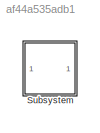
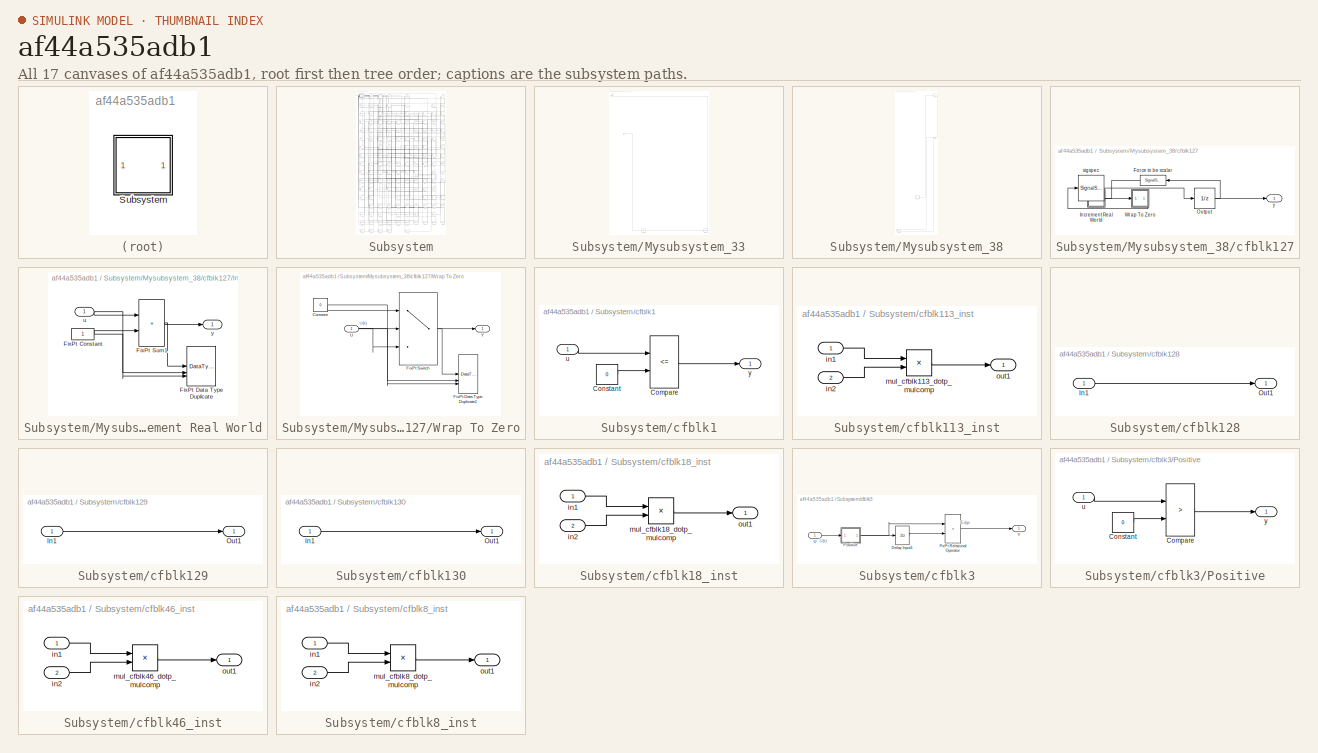
[diagram: thumbnail index - all 17 canvases of the model, root first then tree order]
MODEL slx_af44a535adb1
KIND model
CONFIG AbsTol = auto
CONFIG EnableMultiTasking = off
CONFIG FixedStep = auto
CONFIG MaxStep = auto
CONFIG MinStep = auto
CONFIG RelTol = 1e-3
CONFIG SampleTimeConstraint = Unconstrained
CONFIG SolverName = VariableStepAuto
CONFIG StartTime = 0.0
CONFIG StopTime = 10.0
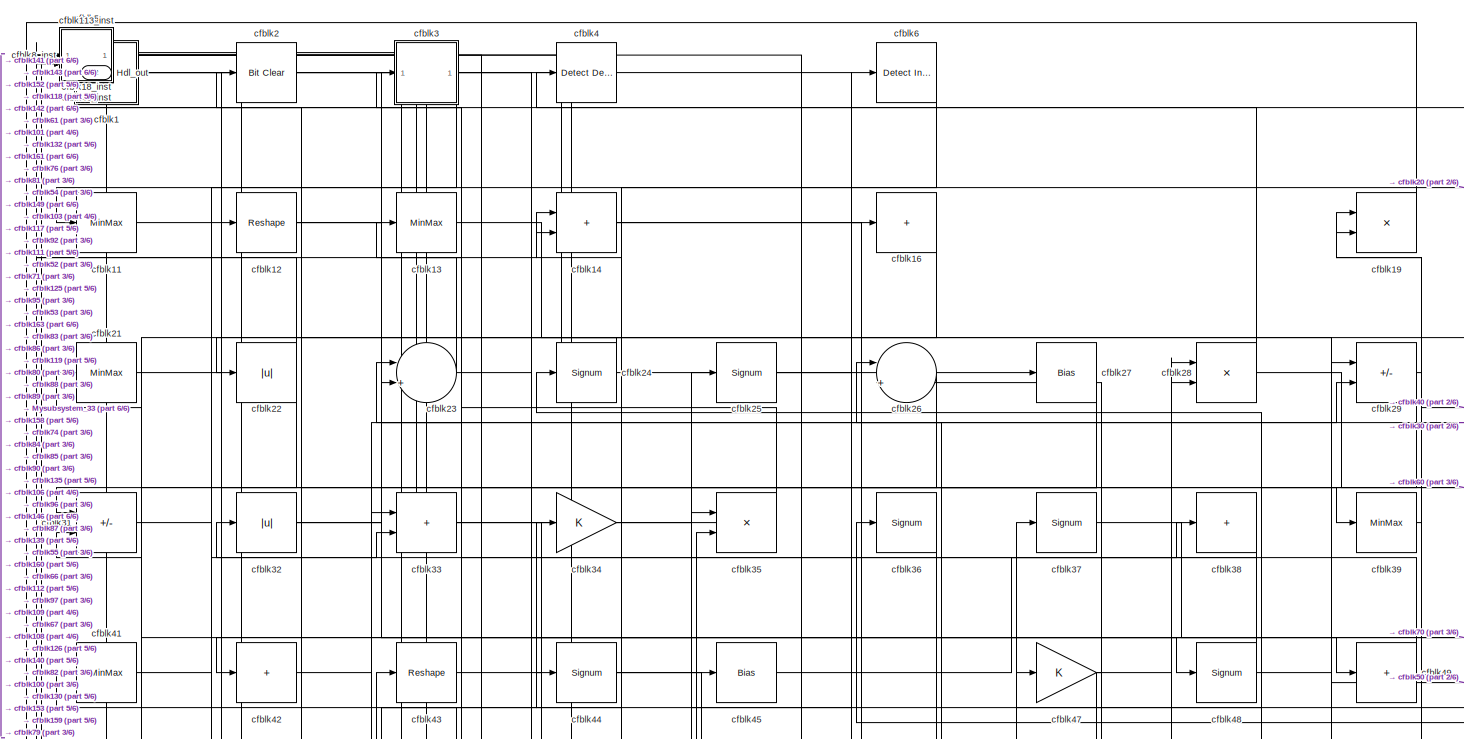
[diagram: Subsystem - part 1/6, full width, top band]
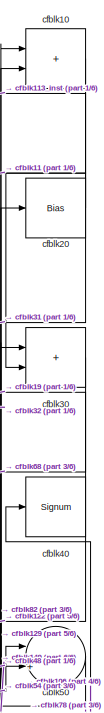
[diagram: Subsystem - part 2/6, top right region]
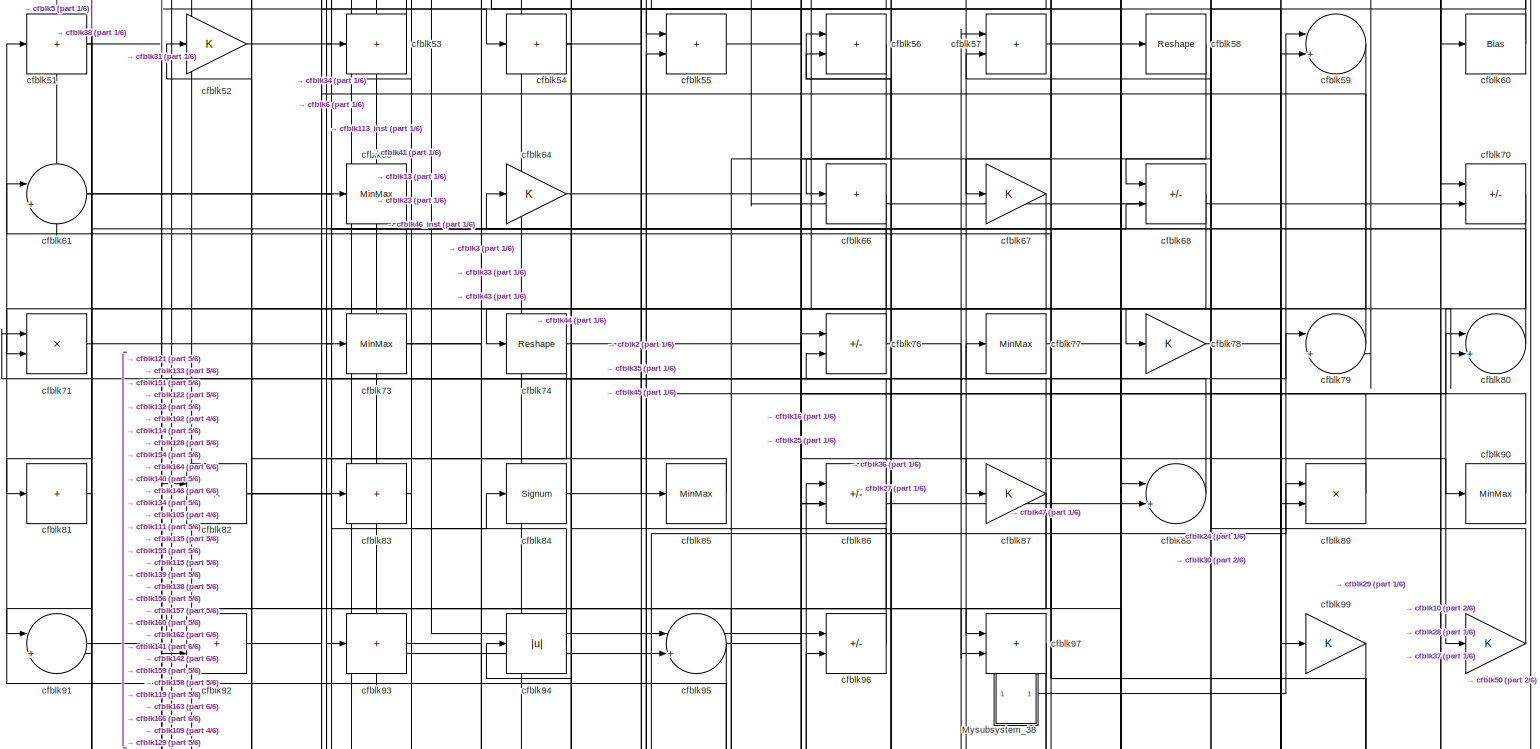
[diagram: Subsystem - part 3/6, full width, middle band]
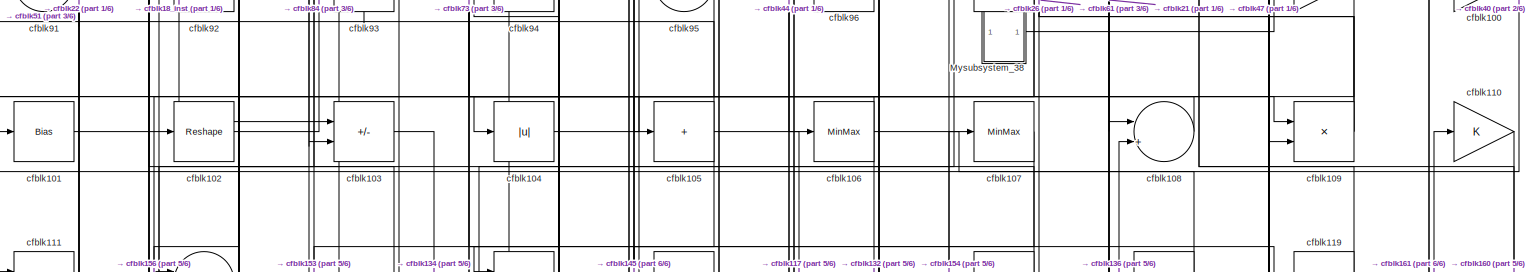
[diagram: Subsystem - part 4/6, full width, middle band]
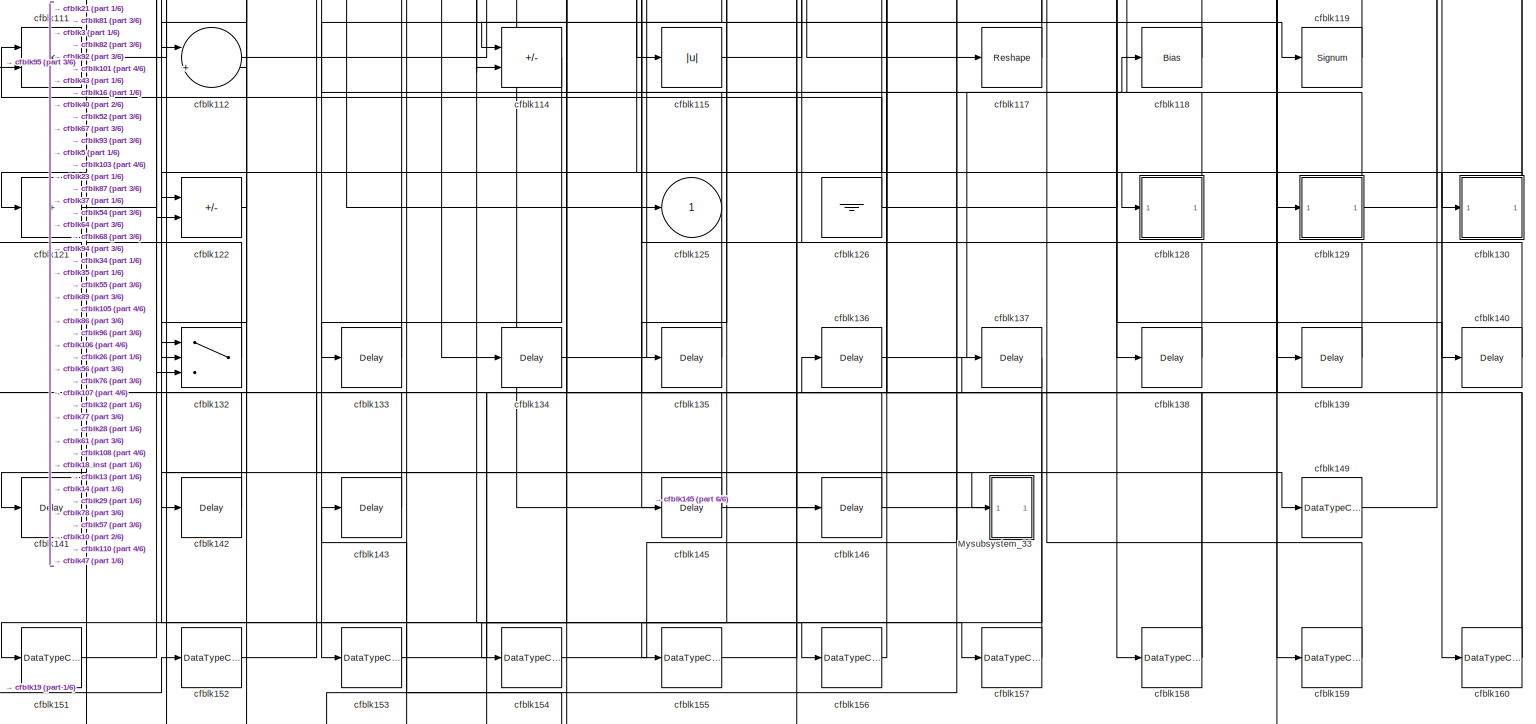
[diagram: Subsystem - part 5/6, full width, bottom band]
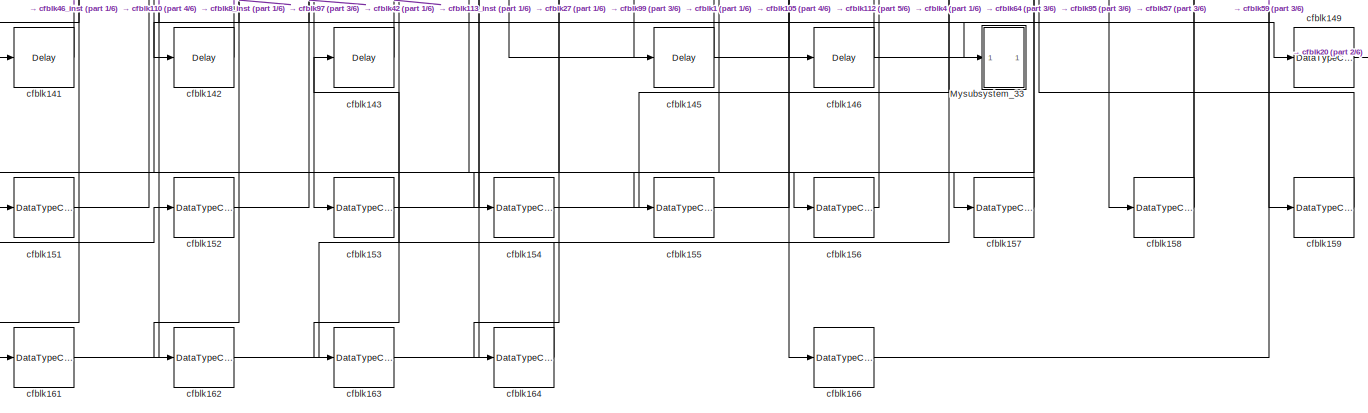
[diagram: Subsystem - part 6/6, full width, bottom band]
BLOCK [SubSystem] Subsystem
BLOCK [Outport] Subsystem/Hdl_out
  OutDataTypeStr = uint8
  Port = 2
  SampleTime = 1
BLOCK [SubSystem] Subsystem/Mysubsystem_33
BLOCK [Inport] Subsystem/Mysubsystem_33/In1
  OutDataTypeStr = uint8
  PortDimensions = 1
  SampleTime = 1
BLOCK [Outport] Subsystem/Mysubsystem_33/Out1
  SampleTime = 1
BLOCK [Delay] Subsystem/Mysubsystem_33/cfblk144
  InputPortMap = u0
  SampleTime = 1
BLOCK [DataTypeConversion] Subsystem/Mysubsystem_33/cfblk150
  OutDataTypeStr = uint8
  RndMeth = Floor
  SaturateOnIntegerOverflow = off
BLOCK [SubSystem] Subsystem/Mysubsystem_38
BLOCK [Outport] Subsystem/Mysubsystem_38/Out1
  SampleTime = 1
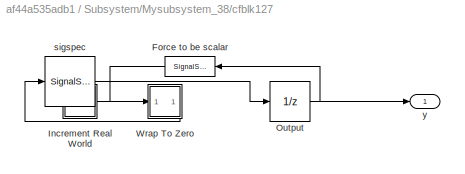
BLOCK [SubSystem] Subsystem/Mysubsystem_38/cfblk127
BLOCK [SignalSpecification] Subsystem/Mysubsystem_38/cfblk127/Force to be scalar
  Dimensions = 1
  DisableCoverage = on
BLOCK [SubSystem] Subsystem/Mysubsystem_38/cfblk127/Increment Real World
BLOCK [Constant] Subsystem/Mysubsystem_38/cfblk127/Increment Real World/FixPt Constant
  DisableCoverage = on
  OutDataTypeStr = Inherit: Inherit via back propagation
  SampleTime = -1
BLOCK [DataTypeDuplicate] Subsystem/Mysubsystem_38/cfblk127/Increment Real World/FixPt Data Type Duplicate
  DisableCoverage = on
  NumInputPorts = 3
BLOCK [Sum] Subsystem/Mysubsystem_38/cfblk127/Increment Real World/FixPt Sum1
  IconShape = rectangular
  InputSameDT = on
  LockScale = on
  OutDataTypeStr = Inherit: Inherit via back propagation
BLOCK [Inport] Subsystem/Mysubsystem_38/cfblk127/Increment Real World/u
  OutDataTypeStr = uint16
  SampleTime = 1
BLOCK [Outport] Subsystem/Mysubsystem_38/cfblk127/Increment Real World/y
  SampleTime = 1
BLOCK [UnitDelay] Subsystem/Mysubsystem_38/cfblk127/Output
  HasFrameUpgradeWarning = on
  InitialCondition = 0.0
  SampleTime = tsamp
BLOCK [SubSystem] Subsystem/Mysubsystem_38/cfblk127/Wrap To Zero
BLOCK [Constant] Subsystem/Mysubsystem_38/cfblk127/Wrap To Zero/Constant
  DisableCoverage = on
  OutDataTypeStr = Inherit: Inherit via back propagation
  SampleTime = -1
  Value = 0
BLOCK [DataTypeDuplicate] Subsystem/Mysubsystem_38/cfblk127/Wrap To Zero/FixPt Data Type Duplicate1
  DisableCoverage = on
  NumInputPorts = 3
BLOCK [Switch] Subsystem/Mysubsystem_38/cfblk127/Wrap To Zero/FixPt Switch
  Criteria = u2 > Threshold
  InputSameDT = off
  OutDataTypeStr = Inherit: Inherit via back propagation
  SaturateOnIntegerOverflow = off
  Threshold = Threshold
  ZeroCross = off
BLOCK [Inport] Subsystem/Mysubsystem_38/cfblk127/Wrap To Zero/U
  OutDataTypeStr = uint16
  SampleTime = 1
BLOCK [Outport] Subsystem/Mysubsystem_38/cfblk127/Wrap To Zero/Y
  SampleTime = 1
BLOCK [SignalSpecification] Subsystem/Mysubsystem_38/cfblk127/sigspec
  Dimensions = 1
  OutDataTypeStr = uint16
BLOCK [Outport] Subsystem/Mysubsystem_38/cfblk127/y
  SampleTime = 1
BLOCK [DataTypeConversion] Subsystem/Mysubsystem_38/cfblk165
  OutDataTypeStr = uint8
  RndMeth = Floor
  SaturateOnIntegerOverflow = off
BLOCK [Abs] Subsystem/Mysubsystem_38/cfblk9
  SaturateOnIntegerOverflow = off
BLOCK [SubSystem] Subsystem/cfblk1
BLOCK [RelationalOperator] Subsystem/cfblk1/Compare
  Operator = <=
  OutDataTypeStr = fixdt(0, 8)
BLOCK [Constant] Subsystem/cfblk1/Constant
  DisableCoverage = on
  OutDataTypeStr = Inherit: Inherit via back propagation
  PreserveConstantTs = on
  SampleTime = -1
  Value = 0
BLOCK [Inport] Subsystem/cfblk1/u
  OutDataTypeStr = uint8
  SampleTime = 1
BLOCK [Outport] Subsystem/cfblk1/y
  SampleTime = 1
BLOCK [Sum] Subsystem/cfblk10
  IconShape = rectangular
  OutDataTypeStr = uint8
BLOCK [Gain] Subsystem/cfblk100
  OutDataTypeStr = uint8
BLOCK [Bias] Subsystem/cfblk101
  Bias = 0.0
  SaturateOnIntegerOverflow = off
BLOCK [Reshape] Subsystem/cfblk102
BLOCK [Sum] Subsystem/cfblk103
  IconShape = rectangular
  Inputs = +-
  OutDataTypeStr = uint8
BLOCK [Abs] Subsystem/cfblk104
  OutDataTypeStr = uint8
  SaturateOnIntegerOverflow = off
BLOCK [Sum] Subsystem/cfblk105
  IconShape = rectangular
  Inputs = +
  OutDataTypeStr = uint8
BLOCK [MinMax] Subsystem/cfblk106
  OutDataTypeStr = uint8
BLOCK [MinMax] Subsystem/cfblk107
  OutDataTypeStr = uint8
BLOCK [Sum] Subsystem/cfblk108
  Inputs = |++
  OutDataTypeStr = uint8
BLOCK [Product] Subsystem/cfblk109
  Inputs = */
  OutDataTypeStr = uint8
  RndMeth = Zero
  SaturateOnIntegerOverflow = on
BLOCK [MinMax] Subsystem/cfblk11
  OutDataTypeStr = uint8
BLOCK [Gain] Subsystem/cfblk110
  OutDataTypeStr = uint8
BLOCK [Product] Subsystem/cfblk111
  Inputs = */
  OutDataTypeStr = uint8
  RndMeth = Zero
  SaturateOnIntegerOverflow = on
BLOCK [Sum] Subsystem/cfblk112
  Inputs = |++
  OutDataTypeStr = uint8
BLOCK [SubSystem] Subsystem/cfblk113_inst
BLOCK [Inport] Subsystem/cfblk113_inst/in1
  OutDataTypeStr = uint8
  SampleTime = 1
BLOCK [Inport] Subsystem/cfblk113_inst/in2
  OutDataTypeStr = uint8
  Port = 2
  SampleTime = 1
BLOCK [Product] Subsystem/cfblk113_inst/mul_cfblk113_dotp_mulcomp
  Inputs = **
  OutDataTypeStr = uint8
  SampleTime = 1
BLOCK [Outport] Subsystem/cfblk113_inst/out1
  OutDataTypeStr = uint8
  SampleTime = 1
BLOCK [Sum] Subsystem/cfblk114
  IconShape = rectangular
  Inputs = +-
  OutDataTypeStr = uint8
BLOCK [Abs] Subsystem/cfblk115
  OutDataTypeStr = uint8
  SaturateOnIntegerOverflow = off
BLOCK [Reshape] Subsystem/cfblk117
BLOCK [Bias] Subsystem/cfblk118
  Bias = 0.0
  SaturateOnIntegerOverflow = off
BLOCK [Signum] Subsystem/cfblk119
BLOCK [Reshape] Subsystem/cfblk12
BLOCK [Sum] Subsystem/cfblk121
  IconShape = rectangular
  Inputs = +
  OutDataTypeStr = uint8
BLOCK [Sum] Subsystem/cfblk122
  IconShape = rectangular
  Inputs = +-
  OutDataTypeStr = uint8
BLOCK [Outport] Subsystem/cfblk125
  OutDataTypeStr = uint8
  SampleTime = 1
  VectorParamsAs1DForOutWhenUnconnected = off
BLOCK [Ground] Subsystem/cfblk126
BLOCK [SubSystem] Subsystem/cfblk128
BLOCK [Inport] Subsystem/cfblk128/In1
  OutDataTypeStr = uint8
  PortDimensions = 1
  SampleTime = 1
BLOCK [Outport] Subsystem/cfblk128/Out1
  SampleTime = 1
BLOCK [SubSystem] Subsystem/cfblk129
BLOCK [Inport] Subsystem/cfblk129/In1
  OutDataTypeStr = uint8
  PortDimensions = 1
  SampleTime = 1
BLOCK [Outport] Subsystem/cfblk129/Out1
  SampleTime = 1
BLOCK [MinMax] Subsystem/cfblk13
  OutDataTypeStr = uint8
BLOCK [SubSystem] Subsystem/cfblk130
BLOCK [Inport] Subsystem/cfblk130/In1
  OutDataTypeStr = uint8
  PortDimensions = 1
  SampleTime = 1
BLOCK [Outport] Subsystem/cfblk130/Out1
  SampleTime = 1
BLOCK [Switch] Subsystem/cfblk132
  InputSameDT = off
  OutDataTypeStr = uint8
  SaturateOnIntegerOverflow = off
BLOCK [Delay] Subsystem/cfblk133
  InputPortMap = u0
  SampleTime = 1
BLOCK [Delay] Subsystem/cfblk134
  InputPortMap = u0
  SampleTime = 1
BLOCK [Delay] Subsystem/cfblk135
  InputPortMap = u0
  SampleTime = 1
BLOCK [Delay] Subsystem/cfblk136
  InputPortMap = u0
  SampleTime = 1
BLOCK [Delay] Subsystem/cfblk137
  InputPortMap = u0
  SampleTime = 1
BLOCK [Delay] Subsystem/cfblk138
  InputPortMap = u0
  SampleTime = 1
BLOCK [Delay] Subsystem/cfblk139
  InputPortMap = u0
  SampleTime = 1
BLOCK [Sum] Subsystem/cfblk14
  IconShape = rectangular
  OutDataTypeStr = uint8
BLOCK [Delay] Subsystem/cfblk140
  InputPortMap = u0
  SampleTime = 1
BLOCK [Delay] Subsystem/cfblk141
  InputPortMap = u0
  SampleTime = 1
BLOCK [Delay] Subsystem/cfblk142
  InputPortMap = u0
  SampleTime = 1
BLOCK [Delay] Subsystem/cfblk143
  InputPortMap = u0
  SampleTime = 1
BLOCK [Delay] Subsystem/cfblk145
  InputPortMap = u0
  SampleTime = 1
BLOCK [Delay] Subsystem/cfblk146
  InputPortMap = u0
  SampleTime = 1
BLOCK [DataTypeConversion] Subsystem/cfblk149
  OutDataTypeStr = uint8
  RndMeth = Floor
  SaturateOnIntegerOverflow = off
BLOCK [DataTypeConversion] Subsystem/cfblk151
  OutDataTypeStr = uint8
  RndMeth = Floor
  SaturateOnIntegerOverflow = off
BLOCK [DataTypeConversion] Subsystem/cfblk152
  OutDataTypeStr = uint8
  RndMeth = Floor
  SaturateOnIntegerOverflow = off
BLOCK [DataTypeConversion] Subsystem/cfblk153
  OutDataTypeStr = uint8
  RndMeth = Floor
  SaturateOnIntegerOverflow = off
BLOCK [DataTypeConversion] Subsystem/cfblk154
  OutDataTypeStr = uint8
  RndMeth = Floor
  SaturateOnIntegerOverflow = off
BLOCK [DataTypeConversion] Subsystem/cfblk155
  OutDataTypeStr = uint8
  RndMeth = Floor
  SaturateOnIntegerOverflow = off
BLOCK [DataTypeConversion] Subsystem/cfblk156
  OutDataTypeStr = uint8
  RndMeth = Floor
  SaturateOnIntegerOverflow = off
BLOCK [DataTypeConversion] Subsystem/cfblk157
  OutDataTypeStr = uint8
  RndMeth = Floor
  SaturateOnIntegerOverflow = off
BLOCK [DataTypeConversion] Subsystem/cfblk158
  OutDataTypeStr = uint8
  RndMeth = Floor
  SaturateOnIntegerOverflow = off
BLOCK [DataTypeConversion] Subsystem/cfblk159
  OutDataTypeStr = uint8
  RndMeth = Floor
  SaturateOnIntegerOverflow = off
BLOCK [Sum] Subsystem/cfblk16
  IconShape = rectangular
  Inputs = +
  OutDataTypeStr = uint8
BLOCK [DataTypeConversion] Subsystem/cfblk160
  OutDataTypeStr = uint8
  RndMeth = Floor
  SaturateOnIntegerOverflow = off
BLOCK [DataTypeConversion] Subsystem/cfblk161
  OutDataTypeStr = uint8
  RndMeth = Floor
  SaturateOnIntegerOverflow = off
BLOCK [DataTypeConversion] Subsystem/cfblk162
  OutDataTypeStr = uint8
  RndMeth = Floor
  SaturateOnIntegerOverflow = off
BLOCK [DataTypeConversion] Subsystem/cfblk163
  OutDataTypeStr = uint8
  RndMeth = Floor
  SaturateOnIntegerOverflow = off
BLOCK [DataTypeConversion] Subsystem/cfblk164
  OutDataTypeStr = uint8
  RndMeth = Floor
  SaturateOnIntegerOverflow = off
BLOCK [DataTypeConversion] Subsystem/cfblk166
  OutDataTypeStr = uint8
  RndMeth = Floor
  SaturateOnIntegerOverflow = off
BLOCK [SubSystem] Subsystem/cfblk18_inst
BLOCK [Inport] Subsystem/cfblk18_inst/in1
  OutDataTypeStr = uint8
  SampleTime = 1
BLOCK [Inport] Subsystem/cfblk18_inst/in2
  OutDataTypeStr = uint8
  Port = 2
  SampleTime = 1
BLOCK [Product] Subsystem/cfblk18_inst/mul_cfblk18_dotp_mulcomp
  Inputs = **
  OutDataTypeStr = uint8
  SampleTime = 1
BLOCK [Outport] Subsystem/cfblk18_inst/out1
  OutDataTypeStr = uint8
  SampleTime = 1
BLOCK [Product] Subsystem/cfblk19
  Inputs = */
  OutDataTypeStr = uint8
  RndMeth = Zero
  SaturateOnIntegerOverflow = on
BLOCK [Reference] Subsystem/cfblk2  REF=simulink/Logic and Bit
Operations/Bit Clear
  LibrarySourceBlock = hdlsllib/Logic and Bit\nOperations/Bit Clear
  SourceBlock = simulink/Logic and Bit\nOperations/Bit Clear
  SourceType = Bit Clear
BLOCK [Bias] Subsystem/cfblk20
  Bias = 0.0
  SaturateOnIntegerOverflow = off
BLOCK [MinMax] Subsystem/cfblk21
  OutDataTypeStr = uint8
BLOCK [Abs] Subsystem/cfblk22
  OutDataTypeStr = uint8
  SaturateOnIntegerOverflow = off
BLOCK [Sum] Subsystem/cfblk23
  Inputs = |++
  OutDataTypeStr = uint8
BLOCK [Signum] Subsystem/cfblk24
BLOCK [Signum] Subsystem/cfblk25
BLOCK [Sum] Subsystem/cfblk26
  Inputs = |++
  OutDataTypeStr = uint8
BLOCK [Bias] Subsystem/cfblk27
  Bias = 0.0
  SaturateOnIntegerOverflow = off
BLOCK [Product] Subsystem/cfblk28
  Inputs = */
  OutDataTypeStr = uint8
  RndMeth = Zero
  SaturateOnIntegerOverflow = on
BLOCK [Sum] Subsystem/cfblk29
  IconShape = rectangular
  Inputs = +-
  OutDataTypeStr = uint8
BLOCK [SubSystem] Subsystem/cfblk3
BLOCK [UnitDelay] Subsystem/cfblk3/Delay Input1
  Description = Store in Global RAM
  DisableCoverage = on
  HasFrameUpgradeWarning = on
  InitialCondition = vinit
  SampleTime = -1
BLOCK [RelationalOperator] Subsystem/cfblk3/FixPt Relational Operator
  InputSameDT = off
  Operator = >
  OutDataTypeStr = fixdt(0, 8)
  ZeroCross = off
BLOCK [SubSystem] Subsystem/cfblk3/Positive
BLOCK [RelationalOperator] Subsystem/cfblk3/Positive/Compare
  Operator = >
  OutDataTypeStr = boolean
  ZeroCross = off
BLOCK [Constant] Subsystem/cfblk3/Positive/Constant
  DisableCoverage = on
  OutDataTypeStr = Inherit: Inherit via back propagation
  PreserveConstantTs = on
  SampleTime = -1
  Value = 0
BLOCK [Inport] Subsystem/cfblk3/Positive/u
  OutDataTypeStr = uint8
  SampleTime = 1
BLOCK [Outport] Subsystem/cfblk3/Positive/y
  SampleTime = 1
BLOCK [Inport] Subsystem/cfblk3/U
  OutDataTypeStr = uint8
  SampleTime = 1
BLOCK [Outport] Subsystem/cfblk3/Y
  SampleTime = 1
BLOCK [Sum] Subsystem/cfblk30
  IconShape = rectangular
  OutDataTypeStr = uint8
BLOCK [Sum] Subsystem/cfblk31
  IconShape = rectangular
  Inputs = +-
  OutDataTypeStr = uint8
BLOCK [Abs] Subsystem/cfblk32
  OutDataTypeStr = uint8
  SaturateOnIntegerOverflow = off
BLOCK [Sum] Subsystem/cfblk33
  IconShape = rectangular
  OutDataTypeStr = uint8
BLOCK [Gain] Subsystem/cfblk34
  OutDataTypeStr = uint8
BLOCK [Product] Subsystem/cfblk35
  Inputs = */
  OutDataTypeStr = uint8
  RndMeth = Zero
  SaturateOnIntegerOverflow = on
BLOCK [Signum] Subsystem/cfblk36
BLOCK [Signum] Subsystem/cfblk37
BLOCK [Sum] Subsystem/cfblk38
  IconShape = rectangular
  Inputs = +
  OutDataTypeStr = uint8
BLOCK [MinMax] Subsystem/cfblk39
  OutDataTypeStr = uint8
BLOCK [Reference] Subsystem/cfblk4  REF=simulink/Logic and Bit
Operations/Detect
Decrease
  LibrarySourceBlock = hdlsllib/Logic and Bit\nOperations/Detect\nDecrease
  SourceBlock = simulink/Logic and Bit\nOperations/Detect\nDecrease
  SourceType = Detect Decrease
BLOCK [Signum] Subsystem/cfblk40
BLOCK [MinMax] Subsystem/cfblk41
  OutDataTypeStr = uint8
BLOCK [Sum] Subsystem/cfblk42
  IconShape = rectangular
  Inputs = +
  OutDataTypeStr = uint8
BLOCK [Reshape] Subsystem/cfblk43
BLOCK [Signum] Subsystem/cfblk44
BLOCK [Bias] Subsystem/cfblk45
  Bias = 0.0
  SaturateOnIntegerOverflow = off
BLOCK [SubSystem] Subsystem/cfblk46_inst
BLOCK [Inport] Subsystem/cfblk46_inst/in1
  OutDataTypeStr = uint8
  SampleTime = 1
BLOCK [Inport] Subsystem/cfblk46_inst/in2
  OutDataTypeStr = uint8
  Port = 2
  SampleTime = 1
BLOCK [Product] Subsystem/cfblk46_inst/mul_cfblk46_dotp_mulcomp
  Inputs = **
  OutDataTypeStr = uint8
  SampleTime = 1
BLOCK [Outport] Subsystem/cfblk46_inst/out1
  OutDataTypeStr = uint8
  SampleTime = 1
BLOCK [Gain] Subsystem/cfblk47
  OutDataTypeStr = uint8
BLOCK [Signum] Subsystem/cfblk48
BLOCK [Sum] Subsystem/cfblk49
  IconShape = rectangular
  Inputs = +
  OutDataTypeStr = uint8
BLOCK [Constant] Subsystem/cfblk5
  OutDataTypeStr = uint8
  SampleTime = 1
  Value = 0
BLOCK [Sum] Subsystem/cfblk50
  Inputs = |++
  OutDataTypeStr = uint8
BLOCK [Sum] Subsystem/cfblk51
  IconShape = rectangular
  Inputs = +
  OutDataTypeStr = uint8
BLOCK [Gain] Subsystem/cfblk52
  OutDataTypeStr = uint8
BLOCK [Sum] Subsystem/cfblk53
  IconShape = rectangular
  Inputs = +
  OutDataTypeStr = uint8
BLOCK [Sum] Subsystem/cfblk54
  IconShape = rectangular
  Inputs = +
  OutDataTypeStr = uint8
BLOCK [Sum] Subsystem/cfblk55
  IconShape = rectangular
  OutDataTypeStr = uint8
BLOCK [Sum] Subsystem/cfblk56
  IconShape = rectangular
  OutDataTypeStr = uint8
BLOCK [Sum] Subsystem/cfblk57
  IconShape = rectangular
  OutDataTypeStr = uint8
BLOCK [Reshape] Subsystem/cfblk58
BLOCK [Sum] Subsystem/cfblk59
  Inputs = |++
  OutDataTypeStr = uint8
BLOCK [Reference] Subsystem/cfblk6  REF=simulink/Logic and Bit
Operations/Detect
Increase
  LibrarySourceBlock = hdlsllib/Logic and Bit\nOperations/Detect\nIncrease
  SourceBlock = simulink/Logic and Bit\nOperations/Detect\nIncrease
  SourceType = Detect Increase
BLOCK [Bias] Subsystem/cfblk60
  Bias = 0.0
  SaturateOnIntegerOverflow = off
BLOCK [Sum] Subsystem/cfblk61
  Inputs = |++
  OutDataTypeStr = uint8
BLOCK [MinMax] Subsystem/cfblk63
  OutDataTypeStr = uint8
BLOCK [Gain] Subsystem/cfblk64
  OutDataTypeStr = uint8
BLOCK [Sum] Subsystem/cfblk66
  IconShape = rectangular
  Inputs = +
  OutDataTypeStr = uint8
BLOCK [Gain] Subsystem/cfblk67
  OutDataTypeStr = uint8
BLOCK [Sum] Subsystem/cfblk68
  IconShape = rectangular
  Inputs = +-
  OutDataTypeStr = uint8
BLOCK [Sum] Subsystem/cfblk70
  IconShape = rectangular
  Inputs = +-
  OutDataTypeStr = uint8
BLOCK [Product] Subsystem/cfblk71
  Inputs = */
  OutDataTypeStr = uint8
  RndMeth = Zero
  SaturateOnIntegerOverflow = on
BLOCK [MinMax] Subsystem/cfblk73
  OutDataTypeStr = uint8
BLOCK [Reshape] Subsystem/cfblk74
BLOCK [Sum] Subsystem/cfblk76
  IconShape = rectangular
  Inputs = +-
  OutDataTypeStr = uint8
BLOCK [MinMax] Subsystem/cfblk77
  OutDataTypeStr = uint8
BLOCK [Gain] Subsystem/cfblk78
  OutDataTypeStr = uint8
BLOCK [Sum] Subsystem/cfblk79
  Inputs = |++
  OutDataTypeStr = uint8
BLOCK [Sum] Subsystem/cfblk80
  Inputs = |++
  OutDataTypeStr = uint8
BLOCK [Sum] Subsystem/cfblk81
  IconShape = rectangular
  Inputs = +
  OutDataTypeStr = uint8
BLOCK [Product] Subsystem/cfblk82
  Inputs = */
  OutDataTypeStr = uint8
  RndMeth = Zero
  SaturateOnIntegerOverflow = on
BLOCK [Sum] Subsystem/cfblk83
  IconShape = rectangular
  Inputs = +
  OutDataTypeStr = uint8
BLOCK [Signum] Subsystem/cfblk84
BLOCK [MinMax] Subsystem/cfblk85
  OutDataTypeStr = uint8
BLOCK [Sum] Subsystem/cfblk86
  IconShape = rectangular
  Inputs = +-
  OutDataTypeStr = uint8
BLOCK [Gain] Subsystem/cfblk87
  OutDataTypeStr = uint8
BLOCK [Sum] Subsystem/cfblk88
  Inputs = |++
  OutDataTypeStr = uint8
BLOCK [Product] Subsystem/cfblk89
  Inputs = */
  OutDataTypeStr = uint8
  RndMeth = Zero
  SaturateOnIntegerOverflow = on
BLOCK [SubSystem] Subsystem/cfblk8_inst
BLOCK [Inport] Subsystem/cfblk8_inst/in1
  OutDataTypeStr = uint8
  SampleTime = 1
BLOCK [Inport] Subsystem/cfblk8_inst/in2
  OutDataTypeStr = uint8
  Port = 2
  SampleTime = 1
BLOCK [Product] Subsystem/cfblk8_inst/mul_cfblk8_dotp_mulcomp
  Inputs = **
  OutDataTypeStr = uint8
  SampleTime = 1
BLOCK [Outport] Subsystem/cfblk8_inst/out1
  OutDataTypeStr = uint8
  SampleTime = 1
BLOCK [MinMax] Subsystem/cfblk90
  OutDataTypeStr = uint8
BLOCK [Sum] Subsystem/cfblk91
  Inputs = |++
  OutDataTypeStr = uint8
BLOCK [Sum] Subsystem/cfblk92
  IconShape = rectangular
  OutDataTypeStr = uint8
BLOCK [Sum] Subsystem/cfblk93
  IconShape = rectangular
  Inputs = +
  OutDataTypeStr = uint8
BLOCK [Abs] Subsystem/cfblk94
  OutDataTypeStr = uint8
  SaturateOnIntegerOverflow = off
BLOCK [Sum] Subsystem/cfblk95
  Inputs = |++
  OutDataTypeStr = uint8
BLOCK [Sum] Subsystem/cfblk96
  IconShape = rectangular
  Inputs = +-
  OutDataTypeStr = uint8
BLOCK [Sum] Subsystem/cfblk97
  IconShape = rectangular
  OutDataTypeStr = uint8
BLOCK [Gain] Subsystem/cfblk99
  OutDataTypeStr = uint8
ANNOTATION Subsystem/Mysubsystem_38/cfblk127/Wrap To Zero: U(k)
ANNOTATION Subsystem/cfblk3: Edge
ANNOTATION Subsystem/cfblk3: U(k)
LINE Subsystem/Mysubsystem_33/In1:1 -> Subsystem/Mysubsystem_33/cfblk144:1
LINE Subsystem/Mysubsystem_33/cfblk144:1 -> Subsystem/Mysubsystem_33/cfblk150:1
LINE Subsystem/Mysubsystem_33/cfblk150:1 -> Subsystem/Mysubsystem_33/Out1:1
LINE Subsystem/Mysubsystem_33:1 -> Subsystem/cfblk1:1
LINE Subsystem/Mysubsystem_38/cfblk127:1 -> Subsystem/Mysubsystem_38/cfblk9:1
LINE Subsystem/Mysubsystem_38/cfblk165:1 -> Subsystem/Mysubsystem_38/Out1:1
LINE Subsystem/Mysubsystem_38/cfblk9:1 -> Subsystem/Mysubsystem_38/cfblk165:1
LINE Subsystem/Mysubsystem_38:1 -> Subsystem/cfblk59:1
LINE Subsystem/cfblk100:1 -> Subsystem/cfblk24:1
LINE Subsystem/cfblk101:1 -> Subsystem/cfblk156:1
LINE Subsystem/cfblk102:1 -> Subsystem/cfblk84:1
LINE Subsystem/cfblk103:1 -> Subsystem/cfblk134:1
LINE Subsystem/cfblk104:1 -> Subsystem/cfblk109:1
NET Subsystem/cfblk105:1 -> Subsystem/cfblk117:1, Subsystem/cfblk145:1, Subsystem/cfblk51:1
NET Subsystem/cfblk106:1 -> Subsystem/cfblk104:1, Subsystem/cfblk132:2, Subsystem/cfblk40:1
LINE Subsystem/cfblk107:1 -> Subsystem/cfblk153:1
LINE Subsystem/cfblk108:1 -> Subsystem/cfblk102:1
NET Subsystem/cfblk109:1 -> Subsystem/cfblk26:2, Subsystem/cfblk61:1
LINE Subsystem/cfblk10:1 -> Subsystem/cfblk30:2
LINE Subsystem/cfblk110:1 -> Subsystem/cfblk160:1
LINE Subsystem/cfblk111:1 -> Subsystem/cfblk43:1
LINE Subsystem/cfblk112:1 -> Subsystem/cfblk37:1
LINE Subsystem/cfblk113_inst/in1:1 -> Subsystem/cfblk113_inst/mul_cfblk113_dotp_mulcomp:1
LINE Subsystem/cfblk113_inst/in2:1 -> Subsystem/cfblk113_inst/mul_cfblk113_dotp_mulcomp:2
LINE Subsystem/cfblk113_inst/mul_cfblk113_dotp_mulcomp:1 -> Subsystem/cfblk113_inst/out1:1
LINE Subsystem/cfblk113_inst:1 -> Subsystem/cfblk95:2
LINE Subsystem/cfblk114:1 -> Subsystem/cfblk133:1
LINE Subsystem/cfblk115:1 -> Subsystem/cfblk86:1
LINE Subsystem/cfblk117:1 -> Subsystem/cfblk32:1
LINE Subsystem/cfblk118:1 -> Subsystem/cfblk18_inst:1
LINE Subsystem/cfblk119:1 -> Subsystem/cfblk57:2
LINE Subsystem/cfblk11:1 -> Subsystem/cfblk12:1
LINE Subsystem/cfblk121:1 -> Subsystem/cfblk82:2
LINE Subsystem/cfblk122:1 -> Subsystem/cfblk52:1
NET Subsystem/cfblk126:1 -> Subsystem/cfblk111:1, Subsystem/cfblk28:2
LINE Subsystem/cfblk128/In1:1 -> Subsystem/cfblk128/Out1:1
LINE Subsystem/cfblk128:1 -> Subsystem/cfblk64:1
LINE Subsystem/cfblk129/In1:1 -> Subsystem/cfblk129/Out1:1
NET Subsystem/cfblk129:1 -> Subsystem/cfblk10:2, Subsystem/cfblk93:1
NET Subsystem/cfblk12:1 -> Subsystem/cfblk23:2, Subsystem/cfblk48:1
LINE Subsystem/cfblk130/In1:1 -> Subsystem/cfblk130/Out1:1
NET Subsystem/cfblk130:1 -> Subsystem/cfblk128:1, Subsystem/cfblk47:1
LINE Subsystem/cfblk132:1 -> Subsystem/cfblk21:1
LINE Subsystem/cfblk133:1 -> Subsystem/cfblk82:1
LINE Subsystem/cfblk134:1 -> Subsystem/cfblk89:1
LINE Subsystem/cfblk135:1 -> Subsystem/cfblk35:2
LINE Subsystem/cfblk136:1 -> Subsystem/cfblk108:2
LINE Subsystem/cfblk137:1 -> Subsystem/cfblk151:1
LINE Subsystem/cfblk138:1 -> Subsystem/cfblk76:2
LINE Subsystem/cfblk139:1 -> Subsystem/cfblk96:2
LINE Subsystem/cfblk13:1 -> Subsystem/cfblk159:1
LINE Subsystem/cfblk140:1 -> Subsystem/cfblk55:2
LINE Subsystem/cfblk141:1 -> Subsystem/cfblk46_inst:1
LINE Subsystem/cfblk142:1 -> Subsystem/cfblk8_inst:2
LINE Subsystem/cfblk143:1 -> Subsystem/cfblk113_inst:1
LINE Subsystem/cfblk145:1 -> Subsystem/cfblk112:2
LINE Subsystem/cfblk146:1 -> Subsystem/cfblk95:1
LINE Subsystem/cfblk149:1 -> Subsystem/cfblk20:1
NET Subsystem/cfblk14:1 -> Subsystem/cfblk139:1, Subsystem/cfblk39:1
LINE Subsystem/cfblk151:1 -> Subsystem/cfblk92:2
LINE Subsystem/cfblk152:1 -> Subsystem/cfblk137:1
LINE Subsystem/cfblk153:1 -> Subsystem/cfblk29:1
LINE Subsystem/cfblk154:1 -> Subsystem/cfblk107:1
LINE Subsystem/cfblk155:1 -> Subsystem/cfblk118:1
LINE Subsystem/cfblk156:1 -> Subsystem/cfblk56:1
LINE Subsystem/cfblk157:1 -> Subsystem/cfblk56:2
NET Subsystem/cfblk158:1 -> Subsystem/cfblk136:1, Subsystem/cfblk14:1
LINE Subsystem/cfblk159:1 -> Subsystem/cfblk77:1
NET Subsystem/cfblk160:1 -> Subsystem/cfblk26:1, Subsystem/cfblk94:1
LINE Subsystem/cfblk161:1 -> Subsystem/cfblk110:1
LINE Subsystem/cfblk162:1 -> Subsystem/cfblk57:1
LINE Subsystem/cfblk163:1 -> Subsystem/cfblk99:1
LINE Subsystem/cfblk164:1 -> Subsystem/cfblk143:1
LINE Subsystem/cfblk166:1 -> Subsystem/cfblk59:2
LINE Subsystem/cfblk16:1 -> Subsystem/cfblk112:1
LINE Subsystem/cfblk18_inst/in1:1 -> Subsystem/cfblk18_inst/mul_cfblk18_dotp_mulcomp:1
LINE Subsystem/cfblk18_inst/in2:1 -> Subsystem/cfblk18_inst/mul_cfblk18_dotp_mulcomp:2
LINE Subsystem/cfblk18_inst/mul_cfblk18_dotp_mulcomp:1 -> Subsystem/cfblk18_inst/out1:1
LINE Subsystem/cfblk18_inst:1 -> Subsystem/cfblk103:1
LINE Subsystem/cfblk19:1 -> Subsystem/cfblk152:1
LINE Subsystem/cfblk1:1 -> Subsystem/cfblk149:1
NET Subsystem/cfblk20:1 -> Subsystem/cfblk113_inst:2, Subsystem/cfblk11:1, Subsystem/cfblk31:1
LINE Subsystem/cfblk21:1 -> Subsystem/cfblk108:1
NET Subsystem/cfblk22:1 -> Subsystem/cfblk101:1, Subsystem/cfblk8_inst:1
NET Subsystem/cfblk23:1 -> Subsystem/cfblk119:1, Subsystem/cfblk18_inst:2
LINE Subsystem/cfblk24:1 -> Subsystem/cfblk22:1
LINE Subsystem/cfblk25:1 -> Subsystem/cfblk87:1
LINE Subsystem/cfblk26:1 -> Subsystem/cfblk42:1
NET Subsystem/cfblk27:1 -> Subsystem/cfblk161:1, Subsystem/cfblk163:1, Subsystem/cfblk66:1
NET Subsystem/cfblk28:1 -> Subsystem/cfblk4:1, Subsystem/cfblk60:1
NET Subsystem/cfblk29:1 -> Subsystem/cfblk67:1, Subsystem/cfblk79:2
LINE Subsystem/cfblk2:1 -> Subsystem/cfblk85:1
LINE Subsystem/cfblk30:1 -> Subsystem/cfblk68:1
LINE Subsystem/cfblk31:1 -> Subsystem/cfblk54:1
NET Subsystem/cfblk32:1 -> Subsystem/cfblk14:2, Subsystem/cfblk30:1
LINE Subsystem/cfblk33:1 -> Subsystem/cfblk88:1
LINE Subsystem/cfblk34:1 -> Subsystem/cfblk130:1
NET Subsystem/cfblk35:1 -> Subsystem/Hdl_out:1, Subsystem/cfblk46_inst:2
LINE Subsystem/cfblk36:1 -> Subsystem/cfblk55:1
LINE Subsystem/cfblk37:1 -> Subsystem/cfblk70:1
LINE Subsystem/cfblk38:1 -> Subsystem/cfblk81:1
LINE Subsystem/cfblk39:1 -> Subsystem/cfblk19:1
NET Subsystem/cfblk3:1 -> Subsystem/cfblk132:3, Subsystem/cfblk49:1, Subsystem/cfblk80:2
NET Subsystem/cfblk40:1 -> Subsystem/cfblk122:1, Subsystem/cfblk19:2
LINE Subsystem/cfblk41:1 -> Subsystem/cfblk33:2
LINE Subsystem/cfblk42:1 -> Subsystem/Mysubsystem_33:1
LINE Subsystem/cfblk43:1 -> Subsystem/cfblk89:2
NET Subsystem/cfblk44:1 -> Subsystem/cfblk106:1, Subsystem/cfblk25:1
LINE Subsystem/cfblk45:1 -> Subsystem/cfblk38:1
LINE Subsystem/cfblk46_inst/in1:1 -> Subsystem/cfblk46_inst/mul_cfblk46_dotp_mulcomp:1
LINE Subsystem/cfblk46_inst/in2:1 -> Subsystem/cfblk46_inst/mul_cfblk46_dotp_mulcomp:2
LINE Subsystem/cfblk46_inst/mul_cfblk46_dotp_mulcomp:1 -> Subsystem/cfblk46_inst/out1:1
NET Subsystem/cfblk46_inst:1 -> Subsystem/cfblk70:2, Subsystem/cfblk96:1
NET Subsystem/cfblk47:1 -> Subsystem/cfblk103:2, Subsystem/cfblk140:1, Subsystem/cfblk97:1
NET Subsystem/cfblk48:1 -> Subsystem/cfblk3:1, Subsystem/cfblk50:2
LINE Subsystem/cfblk49:1 -> Subsystem/cfblk2:1
LINE Subsystem/cfblk4:1 -> Subsystem/cfblk146:1
LINE Subsystem/cfblk50:1 -> Subsystem/cfblk78:1
NET Subsystem/cfblk51:1 -> Subsystem/cfblk91:1, Subsystem/cfblk97:2
LINE Subsystem/cfblk52:1 -> Subsystem/cfblk6:1
LINE Subsystem/cfblk53:1 -> Subsystem/cfblk41:1
NET Subsystem/cfblk54:1 -> Subsystem/cfblk154:1, Subsystem/cfblk50:1
LINE Subsystem/cfblk55:1 -> Subsystem/cfblk16:1
LINE Subsystem/cfblk56:1 -> Subsystem/cfblk155:1
LINE Subsystem/cfblk57:1 -> Subsystem/cfblk58:1
LINE Subsystem/cfblk58:1 -> Subsystem/cfblk86:2
LINE Subsystem/cfblk59:1 -> Subsystem/cfblk164:1
NET Subsystem/cfblk5:1 -> Subsystem/cfblk125:1, Subsystem/cfblk61:2
LINE Subsystem/cfblk60:1 -> Subsystem/cfblk36:1
NET Subsystem/cfblk61:1 -> Subsystem/cfblk138:1, Subsystem/cfblk68:2
LINE Subsystem/cfblk63:1 -> Subsystem/cfblk91:2
LINE Subsystem/cfblk64:1 -> Subsystem/cfblk166:1
LINE Subsystem/cfblk66:1 -> Subsystem/cfblk71:2
LINE Subsystem/cfblk67:1 -> Subsystem/cfblk132:1
LINE Subsystem/cfblk68:1 -> Subsystem/cfblk114:1
LINE Subsystem/cfblk6:1 -> Subsystem/cfblk74:1
LINE Subsystem/cfblk70:1 -> Subsystem/cfblk100:1
LINE Subsystem/cfblk71:1 -> Subsystem/cfblk34:1
NET Subsystem/cfblk73:1 -> Subsystem/cfblk105:1, Subsystem/cfblk109:2
NET Subsystem/cfblk74:1 -> Subsystem/cfblk88:2, Subsystem/cfblk92:1
NET Subsystem/cfblk76:1 -> Subsystem/cfblk31:2, Subsystem/cfblk90:1
LINE Subsystem/cfblk77:1 -> Subsystem/cfblk158:1
LINE Subsystem/cfblk78:1 -> Subsystem/cfblk129:1
LINE Subsystem/cfblk79:1 -> Subsystem/cfblk33:1
LINE Subsystem/cfblk80:1 -> Subsystem/cfblk63:1
LINE Subsystem/cfblk81:1 -> Subsystem/cfblk121:1
NET Subsystem/cfblk82:1 -> Subsystem/cfblk10:1, Subsystem/cfblk115:1, Subsystem/cfblk28:1
LINE Subsystem/cfblk83:1 -> Subsystem/cfblk23:1
LINE Subsystem/cfblk84:1 -> Subsystem/cfblk45:1
LINE Subsystem/cfblk85:1 -> Subsystem/cfblk83:1
NET Subsystem/cfblk86:1 -> Subsystem/cfblk135:1, Subsystem/cfblk13:1
NET Subsystem/cfblk87:1 -> Subsystem/cfblk114:2, Subsystem/cfblk122:2, Subsystem/cfblk53:1
LINE Subsystem/cfblk88:1 -> Subsystem/cfblk71:1
LINE Subsystem/cfblk89:1 -> Subsystem/cfblk76:1
LINE Subsystem/cfblk8_inst/in1:1 -> Subsystem/cfblk8_inst/mul_cfblk8_dotp_mulcomp:1
LINE Subsystem/cfblk8_inst/in2:1 -> Subsystem/cfblk8_inst/mul_cfblk8_dotp_mulcomp:2
LINE Subsystem/cfblk8_inst/mul_cfblk8_dotp_mulcomp:1 -> Subsystem/cfblk8_inst/out1:1
LINE Subsystem/cfblk8_inst:1 -> Subsystem/cfblk27:1
LINE Subsystem/cfblk90:1 -> Subsystem/cfblk35:1
LINE Subsystem/cfblk91:1 -> Subsystem/cfblk79:1
LINE Subsystem/cfblk92:1 -> Subsystem/cfblk29:2
LINE Subsystem/cfblk93:1 -> Subsystem/cfblk157:1
LINE Subsystem/cfblk94:1 -> Subsystem/cfblk73:1
NET Subsystem/cfblk95:1 -> Subsystem/cfblk111:2, Subsystem/cfblk80:1
LINE Subsystem/cfblk96:1 -> Subsystem/cfblk44:1
NET Subsystem/cfblk97:1 -> Subsystem/cfblk141:1, Subsystem/cfblk142:1
LINE Subsystem/cfblk99:1 -> Subsystem/cfblk162:1
note: NET lines group one-source signal fan-out (src -> all destinations, sorted); 1:1 wires keep LINE
